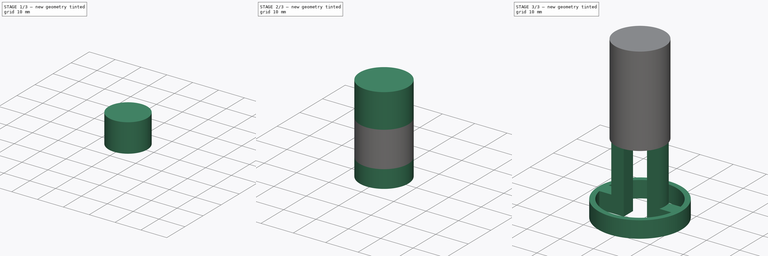
[diagram: build sequence overview — one tinted view per stage of 3, left to right]
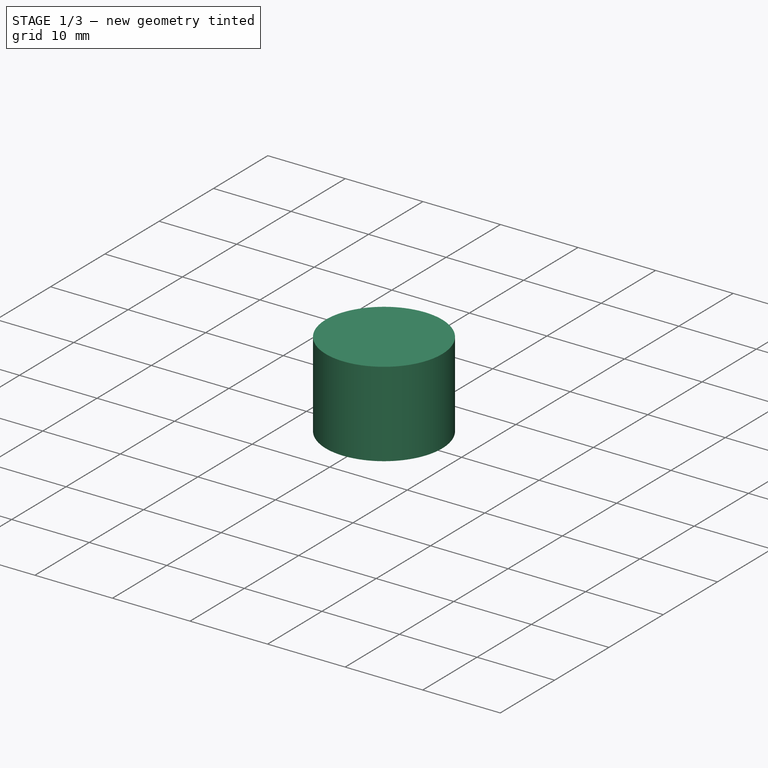
[diagram: stage 1 of 3 — iso view after this stage's code; geometry added in this stage tinted green]
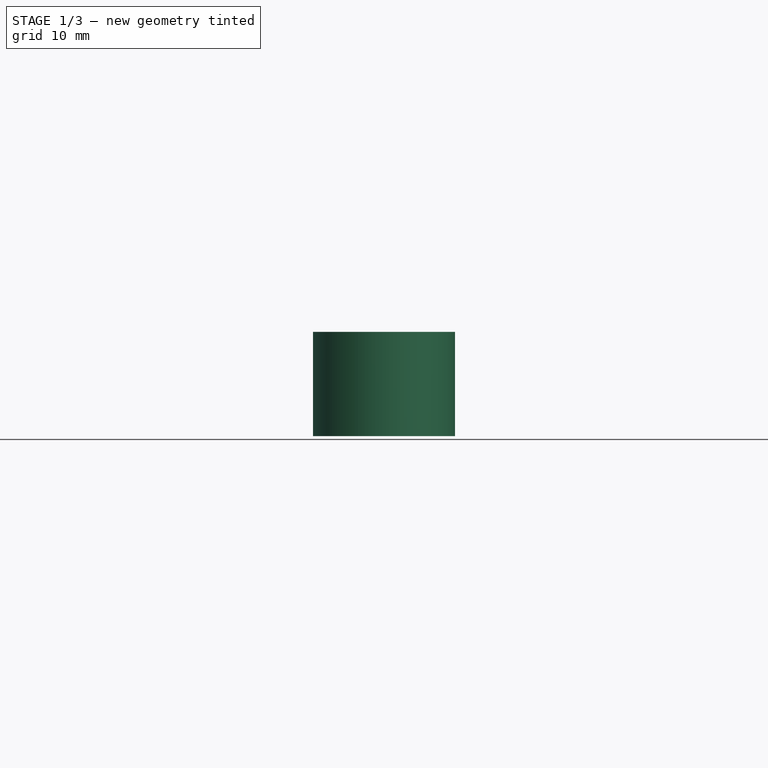
[diagram: stage 1 of 3 — front view after this stage's code; geometry added in this stage tinted green]
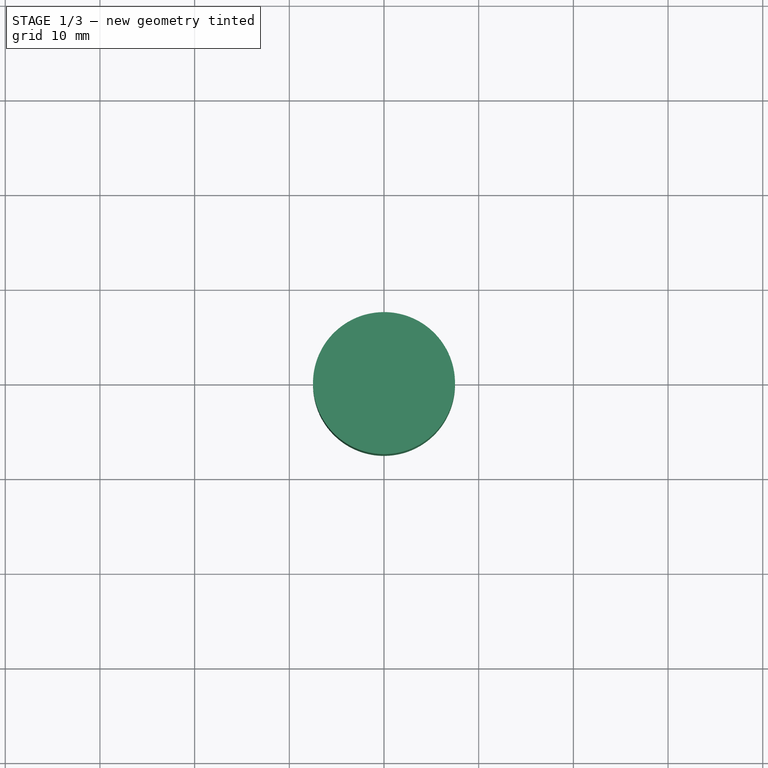
[diagram: stage 1 of 3 — top view after this stage's code; geometry added in this stage tinted green]
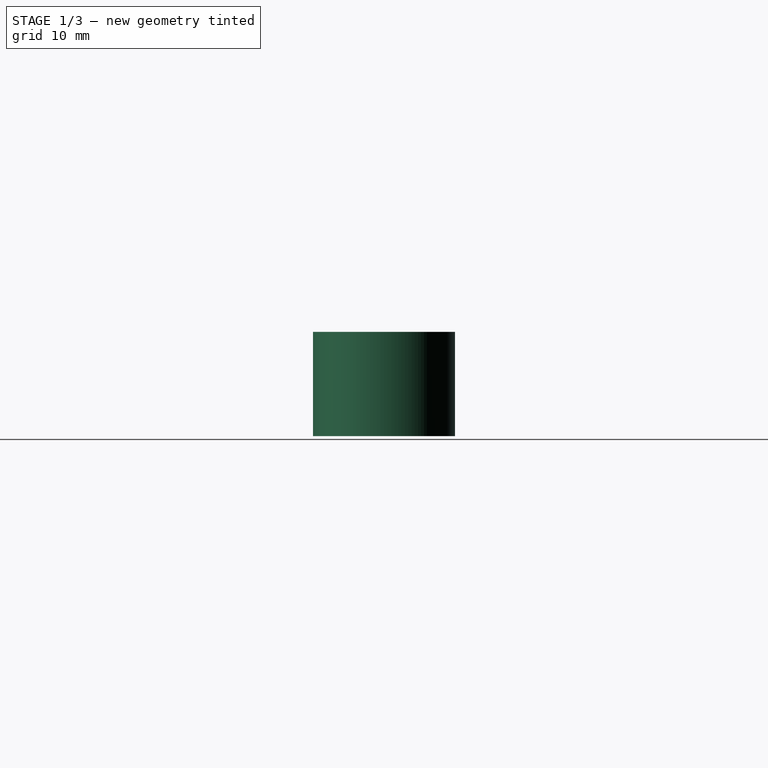
[diagram: stage 1 of 3 — right view after this stage's code; geometry added in this stage tinted green]
FCSTD DOCUMENT  (FreeCAD 0.19R24276 (Git))
Label: SC_ring
License: All rights reserved
LicenseURL: http://en.wikipedia.org/wiki/All_rights_reserved
objects: Sketcher::SketchObject×8, PartDesign::Pad×7, PartDesign::Body×1
note: 23 computed .brp shape members not serialized (recipe doc carries the construction recipe); baked Part::Feature solids carry a one-line shape summary decoded from their .brp

FEATURE [Sketcher::SketchObject] Sketch
  FullyConstrained = true
  MapMode = 5
  Support = -> [XY_Plane]
  sketch-geometry (1):
    g0: Circle CenterX=0 CenterY=0 CenterZ=0 NormalX=0 NormalY=0 NormalZ=1 AngleXU=0 Radius=7.5
  constraints (2):
    c: Coincident(g0,g-1)
    c: Diameter(g0) = 15
FEATURE [PartDesign::Pad] Pad
  Direction = (1,1,1)
  Length = 9
  Length2 = 100
  Profile = -> Sketch
  Type = 0
FEATURE [Sketcher::SketchObject] Sketch001
  FullyConstrained = true
  MapMode = 5
  Placement = pos=(0,0,9) rot=(0,0,1;0rad)
  Support = -> [Pad]
  sketch-geometry (1):
    g0: Circle CenterX=0 CenterY=0 CenterZ=0 NormalX=0 NormalY=0 NormalZ=1 AngleXU=0 Radius=7.5
  constraints (2):
    c: Coincident(g0,g-1)
    c: Diameter(g0) = 15
FEATURE [PartDesign::Pad] Pad001
  BaseFeature = -> Pad
  Direction = (1,1,1)
  Length = 2
  Length2 = 100
  Profile = -> Sketch001
  Type = 0
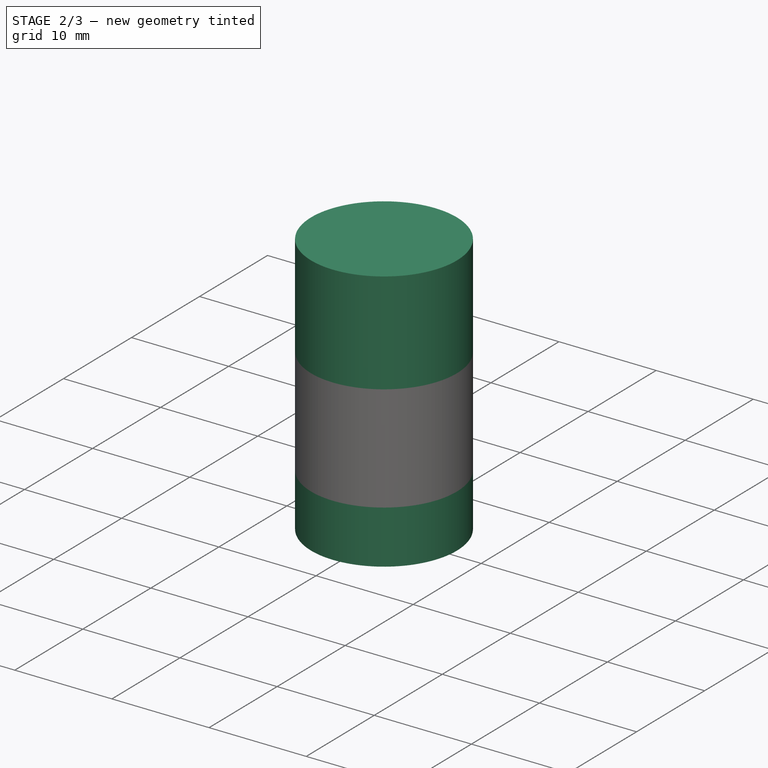
[diagram: stage 2 of 3 — iso view after this stage's code; geometry added in this stage tinted green]
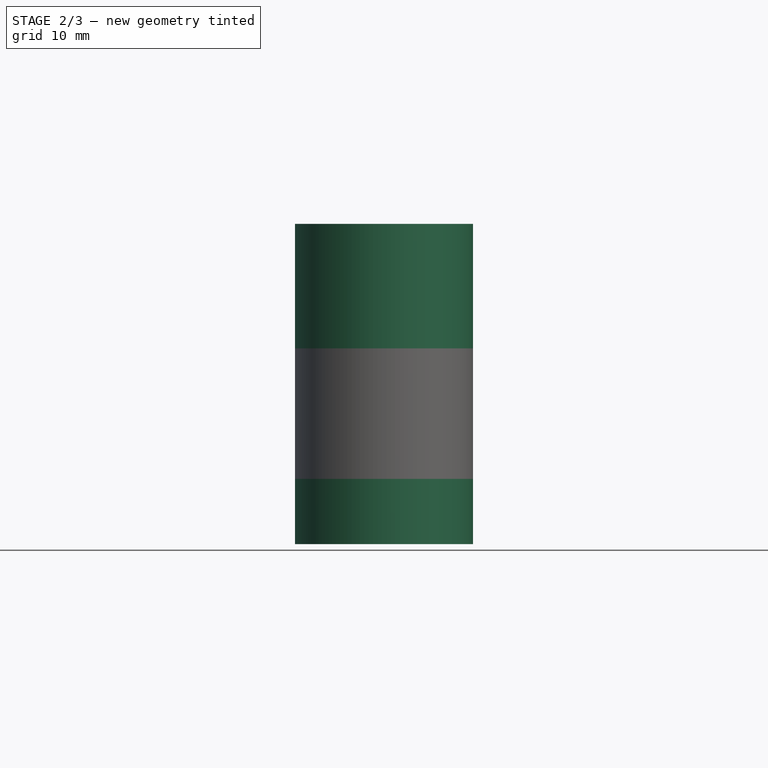
[diagram: stage 2 of 3 — front view after this stage's code; geometry added in this stage tinted green]
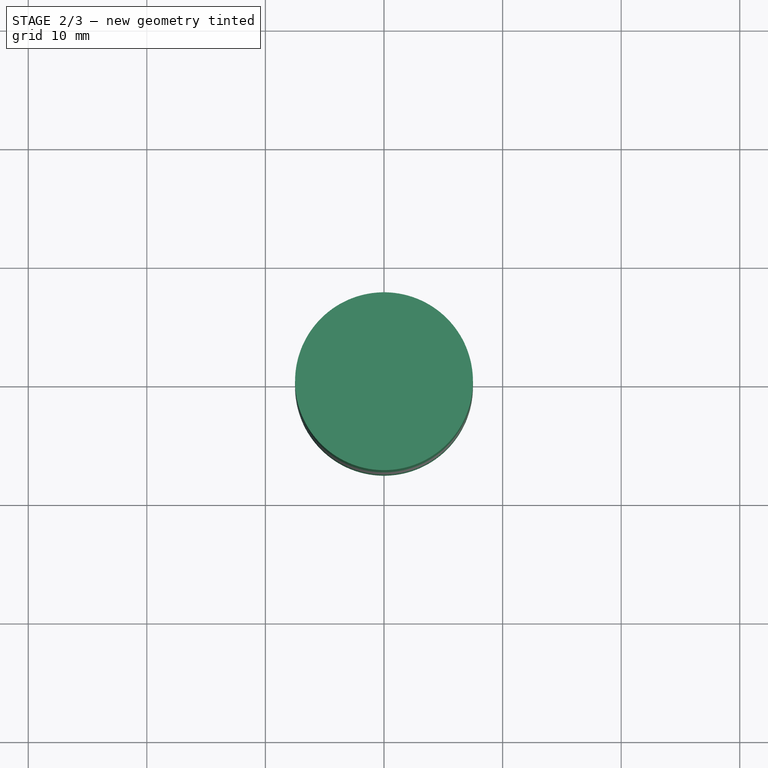
[diagram: stage 2 of 3 — top view after this stage's code; geometry added in this stage tinted green]
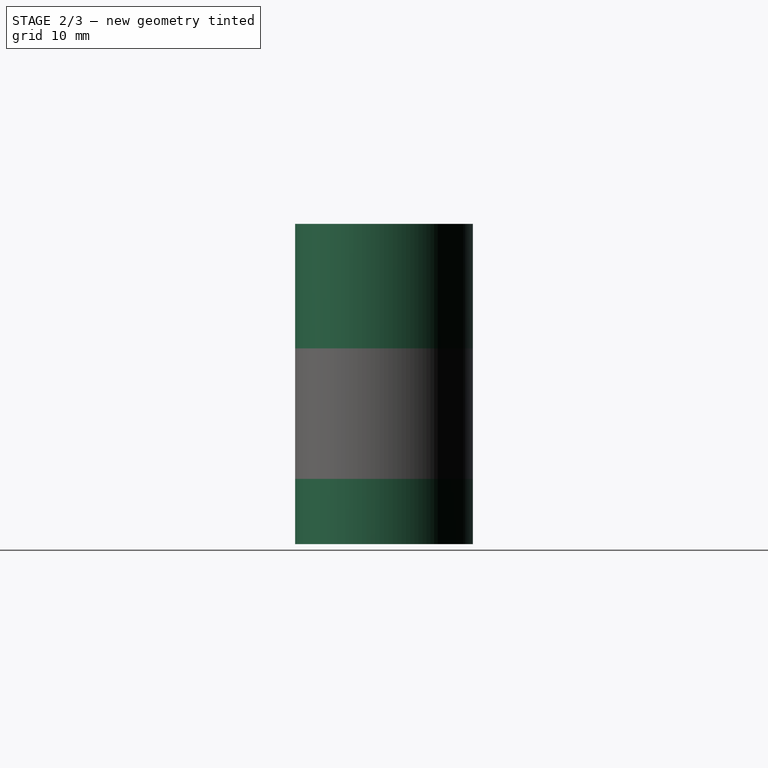
[diagram: stage 2 of 3 — right view after this stage's code; geometry added in this stage tinted green]
FEATURE [Sketcher::SketchObject] Sketch002
  FullyConstrained = true
  MapMode = 5
  Placement = pos=(0,0,11) rot=(0,0,1;0rad)
  Support = -> [Pad001]
  sketch-geometry (1):
    g0: Circle CenterX=0 CenterY=0 CenterZ=0 NormalX=0 NormalY=0 NormalZ=1 AngleXU=0 Radius=7.5
  constraints (2):
    c: Coincident(g0,g-1)
    c: Diameter(g0) = 15
FEATURE [PartDesign::Pad] Pad002
  BaseFeature = -> Pad001
  Direction = (1,1,1)
  Length = 9
  Length2 = 100
  Profile = -> Sketch002
  Type = 0
FEATURE [Sketcher::SketchObject] Sketch003
  FullyConstrained = true
  MapMode = 5
  Placement = pos=(0,0,20) rot=(0,0,1;0rad)
  Support = -> [Pad002]
  sketch-geometry (1):
    g0: Circle CenterX=0 CenterY=0 CenterZ=0 NormalX=0 NormalY=0 NormalZ=1 AngleXU=0 Radius=7.5
  constraints (2):
    c: Coincident(g0,g-1)
    c: Diameter(g0) = 15
FEATURE [PartDesign::Pad] Pad003
  BaseFeature = -> Pad002
  Direction = (1,1,1)
  Length = 1.5
  Length2 = 100
  Profile = -> Sketch003
  Type = 0
FEATURE [Sketcher::SketchObject] Sketch004
  FullyConstrained = true
  MapMode = 5
  Placement = pos=(0,0,0) rot=(1,0,0;3.14159rad)
  Support = -> [Pad003]
  sketch-geometry (1):
    g0: Circle CenterX=0 CenterY=0 CenterZ=0 NormalX=0 NormalY=0 NormalZ=1 AngleXU=0 Radius=7.5
  constraints (2):
    c: Coincident(g0,g-1)
    c: Diameter(g0) = 15
FEATURE [PartDesign::Pad] Pad004
  BaseFeature = -> Pad003
  Direction = (1,1,1)
  Length = 5.5
  Length2 = 100
  Profile = -> Sketch004
  Type = 0
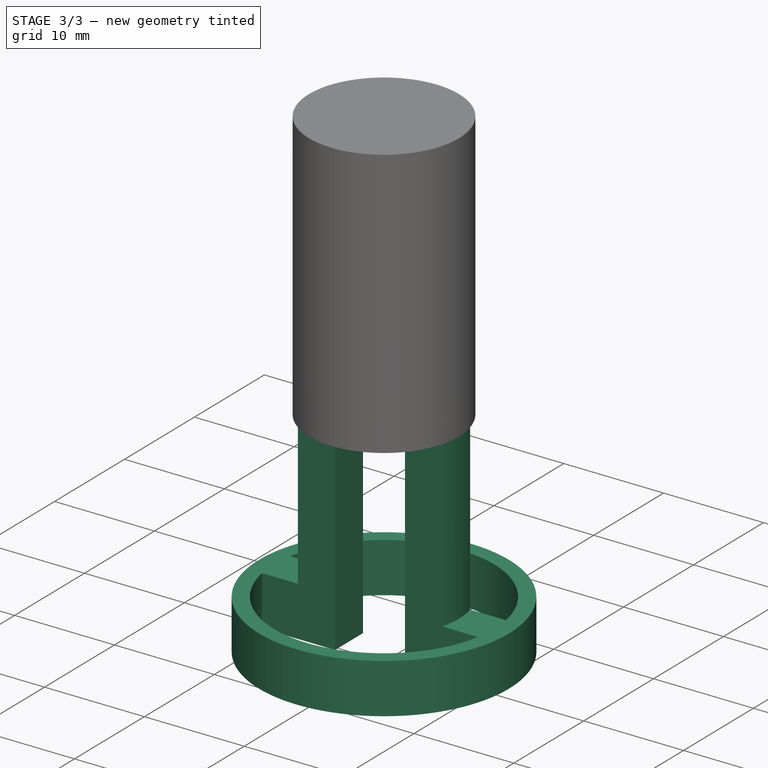
[diagram: stage 3 of 3 — iso view after this stage's code; geometry added in this stage tinted green]
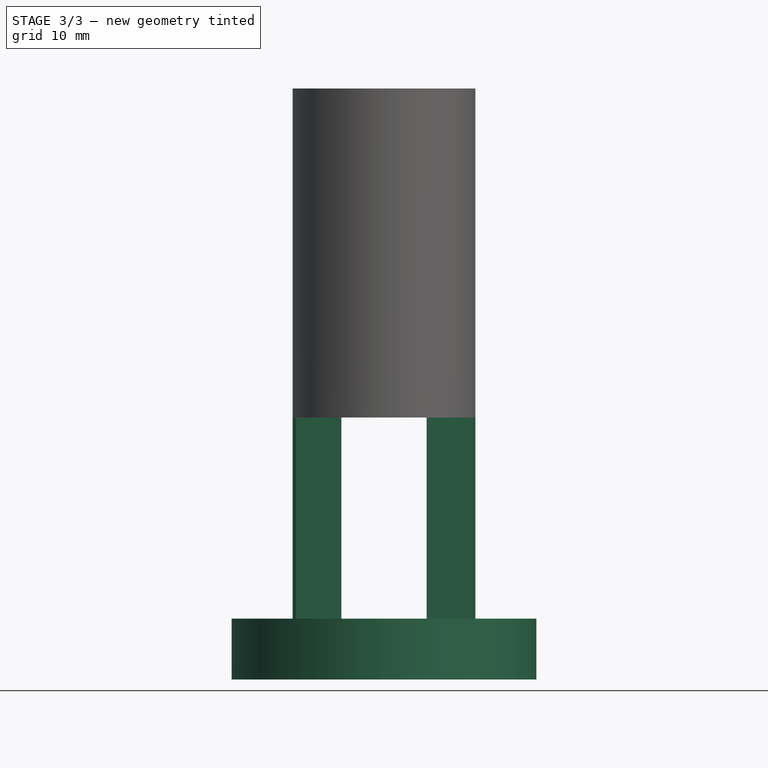
[diagram: stage 3 of 3 — front view after this stage's code; geometry added in this stage tinted green]
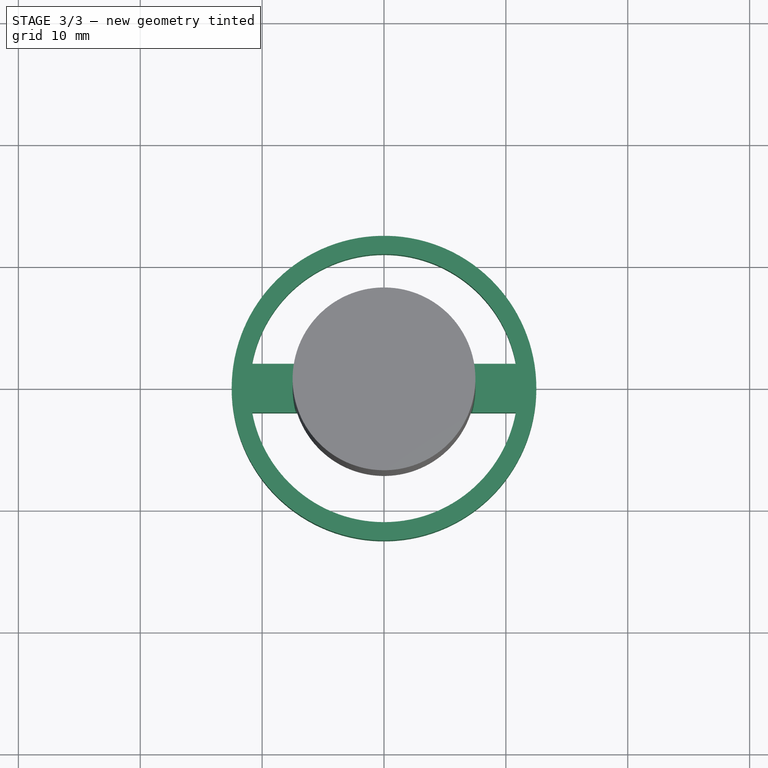
[diagram: stage 3 of 3 — top view after this stage's code; geometry added in this stage tinted green]
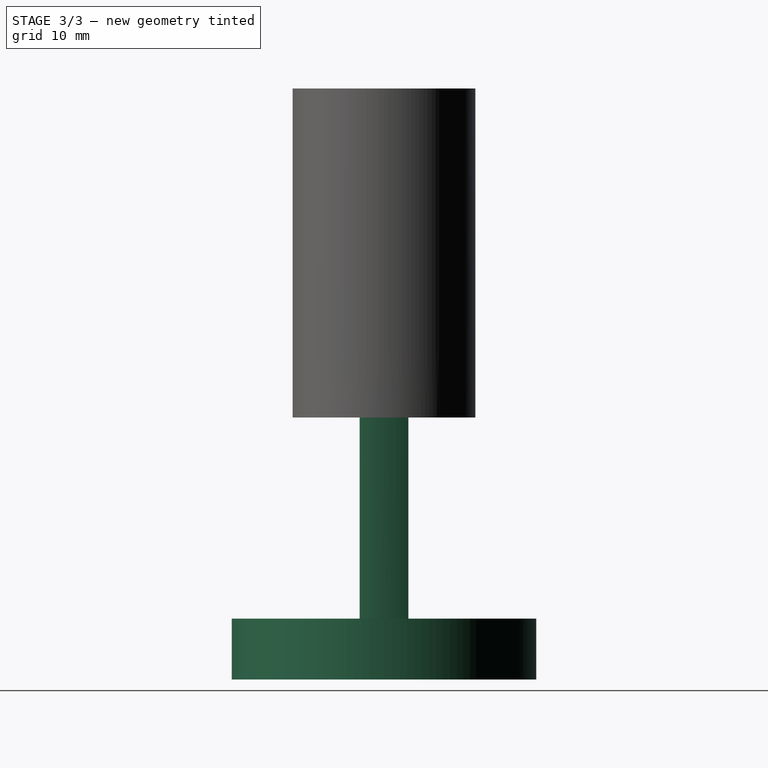
[diagram: stage 3 of 3 — right view after this stage's code; geometry added in this stage tinted green]
FEATURE [Sketcher::SketchObject] Sketch005
  FullyConstrained = false
  MapMode = 5
  Placement = pos=(0,0,-5.5) rot=(1,0,0;3.14159rad)
  Support = -> [Pad004]
  sketch-geometry (11):
    g0: LineSegment StartX=3.5 StartY=2 StartZ=0 EndX=3.5 EndY=-2 EndZ=0
    g1: LineSegment StartX=3.5 StartY=-2 StartZ=0 EndX=7.22842 EndY=-2 EndZ=0
    g2: LineSegment StartX=3.5 StartY=2 StartZ=0 EndX=7.22842 EndY=2 EndZ=0
    g3: LineSegment StartX=0 StartY=0 StartZ=0 EndX=3.5 EndY=0 EndZ=0
    g4: ArcOfCircle CenterX=0 CenterY=0 CenterZ=0 NormalX=0 NormalY=0 NormalZ=1 AngleXU=0 Radius=7.5 StartAngle=6.01325 EndAngle=6.55312
    g5: LineSegment StartX=0 StartY=0 StartZ=0 EndX=0 EndY=5.30132 EndZ=0
    g6: LineSegment StartX=0 StartY=0 StartZ=0 EndX=7.5 EndY=0 EndZ=0
    g7: LineSegment StartX=-3.5 StartY=2 StartZ=0 EndX=-3.5 EndY=-2 EndZ=0
    g8: LineSegment StartX=-3.5 StartY=-2 StartZ=0 EndX=-7.22842 EndY=-2 EndZ=0
    g9: LineSegment StartX=-3.5 StartY=2 StartZ=0 EndX=-7.22842 EndY=2 EndZ=0
    g10: ArcOfCircle CenterX=0 CenterY=0 CenterZ=0 NormalX=0 NormalY=0 NormalZ=1 AngleXU=0 Radius=7.5 StartAngle=2.87166 EndAngle=3.41153
  constraints (24):
    c: Vertical(g0)
    c: Coincident(g1,g0)
    c: Horizontal(g1)
    c: Coincident(g2,g0)
    c: Horizontal(g2)
    c: Coincident(g3,g-1)
    c: PointOnObject(g3,g-1)
    c: Symmetric(g0,g0,g3)
    c: Coincident(g4,g-1)
    c: Diameter(g4) = 15
    c: Coincident(g5,g-1)
    c: PointOnObject(g5,g-2)
    c: Coincident(g4,g1)
    c: Coincident(g4,g2)
    c: DistanceY(g0,g0) = 4
    c: Coincident(g6,g4)
    c: PointOnObject(g6,g4)
    c: Horizontal(g6)
    c: DistanceX(g0,g6) = 4
    c: Coincident(g8,g7)
    c: Coincident(g9,g7)
    c: Diameter(g10) = 15
    c: Coincident(g10,g8)
    c: Coincident(g10,g9)
FEATURE [PartDesign::Pad] Pad005
  BaseFeature = -> Pad004
  Direction = (1,1,1)
  Length = 21.5
  Length2 = 100
  Profile = -> Sketch005
  Type = 0
FEATURE [Sketcher::SketchObject] Sketch006
  FullyConstrained = false
  MapMode = 5
  Placement = pos=(0,0,-27) rot=(1,0,0;3.14159rad)
  Support = -> [Pad005]
  sketch-geometry (13):
    g0: ArcOfCircle CenterX=0 CenterY=0 CenterZ=0 NormalX=0 NormalY=0 NormalZ=1 AngleXU=0 Radius=11 StartAngle=0.182835 EndAngle=2.95876
    g1: Circle CenterX=0 CenterY=0 CenterZ=0 NormalX=0 NormalY=0 NormalZ=1 AngleXU=0 Radius=12.5
    g2: LineSegment StartX=3.5 StartY=2 StartZ=0 EndX=10.8167 EndY=2 EndZ=0
    g3: LineSegment StartX=10.8167 StartY=-2 StartZ=0 EndX=3.5 EndY=-2 EndZ=0
    g4: LineSegment StartX=3.5 StartY=-2 StartZ=0 EndX=3.5 EndY=2 EndZ=0
    g5: Circle CenterX=0 CenterY=0 CenterZ=0 NormalX=0 NormalY=0 NormalZ=1 AngleXU=0 Radius=7.5
    g6: LineSegment StartX=0 StartY=0 StartZ=0 EndX=7.5 EndY=0 EndZ=0
    g7: LineSegment StartX=0 StartY=0 StartZ=0 EndX=3.5 EndY=0 EndZ=0
    g8: LineSegment StartX=0 StartY=0 StartZ=0 EndX=0 EndY=5.84067 EndZ=0
    g9: LineSegment StartX=-3.5 StartY=2 StartZ=0 EndX=-10.8167 EndY=2 EndZ=0
    g10: LineSegment StartX=-10.8167 StartY=-2 StartZ=0 EndX=-3.5 EndY=-2 EndZ=0
    g11: LineSegment StartX=-3.5 StartY=-2 StartZ=0 EndX=-3.5 EndY=2 EndZ=0
    g12: ArcOfCircle CenterX=0 CenterY=0 CenterZ=0 NormalX=0 NormalY=0 NormalZ=1 AngleXU=0 Radius=11 StartAngle=3.32443 EndAngle=6.10035
  constraints (28):
    c: Coincident(g1,g0)
    c: Diameter(g1) = 25
    c: Diameter(g0) = 22
    c: Coincident(g3,g4)
    c: Coincident(g4,g2)
    c: Horizontal(g2)
    c: Horizontal(g3)
    c: Vertical(g4)
    c: Coincident(g5,g0)
    c: Diameter(g5) = 15
    c: Horizontal(g6)
    c: PointOnObject(g6,g5)
    c: DistanceX(g3,g6) = 4
    c: Coincident(g7,g0)
    c: Horizontal(g7)
    c: Symmetric(g2,g3,g7)
    c: Coincident(g-1,g0)
    c: DistanceY(g3,g2) = 4
    c: Coincident(g8,g0)
    c: PointOnObject(g8,g-2)
    c: Coincident(g10,g11)
    c: Coincident(g11,g9)
    c: Coincident(g0,g2)
    c: Coincident(g12,g3)
    c: Equal(g0,g12)
    c: Coincident(g0,g12)
    c: Coincident(g9,g0)
    c: Coincident(g10,g12)
FEATURE [PartDesign::Pad] Pad006
  BaseFeature = -> Pad005
  Direction = (1,1,1)
  Length = 5
  Length2 = 100
  Profile = -> Sketch006
  Reversed = true
  Type = 0
FEATURE [Sketcher::SketchObject] Sketch007
  FullyConstrained = false
  MapMode = 5
  Placement = pos=(0,0,-27) rot=(1,0,0;3.14159rad)
  Support = -> [Pad006]
  sketch-geometry (19):
    g0: Circle CenterX=0 CenterY=25 CenterZ=0 NormalX=0 NormalY=0 NormalZ=1 AngleXU=0 Radius=2.5
    g1: Circle CenterX=0 CenterY=-15 CenterZ=0 NormalX=0 NormalY=0 NormalZ=1 AngleXU=0 Radius=2.5
    g2: Circle CenterX=10 CenterY=45 CenterZ=0 NormalX=0 NormalY=0 NormalZ=1 AngleXU=0 Radius=2.5
    g3: Circle CenterX=-10 CenterY=45 CenterZ=0 NormalX=0 NormalY=0 NormalZ=1 AngleXU=0 Radius=2.5
    g4: Circle CenterX=10 CenterY=-35 CenterZ=0 NormalX=0 NormalY=0 NormalZ=1 AngleXU=0 Radius=2.5
    g5: Circle CenterX=-10 CenterY=-35 CenterZ=0 NormalX=0 NormalY=0 NormalZ=1 AngleXU=0 Radius=2.5
    g6: LineSegment StartX=0 StartY=25 StartZ=0 EndX=0 EndY=45 EndZ=0
    g7: LineSegment StartX=0 StartY=0 StartZ=0 EndX=0 EndY=-35 EndZ=0
    g8: LineSegment StartX=-10 StartY=5 StartZ=0 EndX=10 EndY=5 EndZ=0
    g9: Circle CenterX=-10 CenterY=5 CenterZ=0 NormalX=0 NormalY=0 NormalZ=1 AngleXU=0 Radius=2.5
    g10: Circle CenterX=10 CenterY=5 CenterZ=0 NormalX=0 NormalY=0 NormalZ=1 AngleXU=0 Radius=2.5
    g11: LineSegment StartX=20 StartY=-45 StartZ=0 EndX=-20 EndY=-45 EndZ=0
    g12: LineSegment StartX=-20 StartY=-45 StartZ=0 EndX=-20 EndY=55 EndZ=0
    g13: LineSegment StartX=-20 StartY=55 StartZ=0 EndX=20 EndY=55 EndZ=0
    g14: LineSegment StartX=20 StartY=55 StartZ=0 EndX=20 EndY=-45 EndZ=0
    g15: LineSegment StartX=-16.9888 StartY=31.8157 StartZ=0 EndX=17.8065 EndY=31.8157 EndZ=0
    g16: LineSegment StartX=17.8065 StartY=31.8157 StartZ=0 EndX=17.8065 EndY=-23.3985 EndZ=0
    g17: LineSegment StartX=17.8065 StartY=-23.3985 StartZ=0 EndX=-16.9888 EndY=-23.3985 EndZ=0
    g18: LineSegment StartX=-16.9888 StartY=-23.3985 StartZ=0 EndX=-16.9888 EndY=31.8157 EndZ=0
  constraints (49):
    c: PointOnObject(g0,g-2)
    c: PointOnObject(g1,g-2)
    c: Diameter(g1) = 5
    c: Equal(g1,g0)
    c: DistanceY(g1,g-1) = 15
    c: DistanceY(g-1,g0) = 25
    c: Horizontal(g3,g2)
    c: DistanceY(g0,g2) = 20
    c: Horizontal(g5,g4)
    c: Equal(g5,g4)
    c: Equal(g4,g1)
    c: Equal(g1,g3)
    c: Equal(g3,g2)
    c: Coincident(g6,g0)
    c: Vertical(g6)
    c: Symmetric(g3,g2,g6)
    c: Coincident(g7,g-1)
    c: PointOnObject(g7,g-2)
    c: Symmetric(g5,g4,g7)
    c: DistanceY(g5,g1) = 20
    c: Horizontal(g8)
    c: Symmetric(g5,g3,g8)
    c: Vertical(g5,g3)
    c: DistanceX(g3,g2) = 20
    c: Coincident(g9,g8)
    c: Coincident(g10,g8)
    c: Equal(g9,g10)
    c: Equal(g10,g0)
    c: DistanceX(g8,g8) = 20
    c: Coincident(g11,g12)
    c: Coincident(g12,g13)
    c: Coincident(g13,g14)
    c: Coincident(g14,g11)
    c: Horizontal(g11)
    c: Horizontal(g13)
    c: Vertical(g12)
    c: Vertical(g14)
    c: DistanceY(g11,g4) = 10
    c: DistanceX(g4,g11) = 10
    c: DistanceX(g11,g11) = 40
    c: DistanceY(g14,g14) = 100
    c: Coincident(g15,g16)
    c: Coincident(g16,g17)
    c: Coincident(g17,g18)
    c: Coincident(g18,g15)
    c: Horizontal(g15)
    c: Horizontal(g17)
    c: Vertical(g16)
    c: Vertical(g18)
FEATURE [PartDesign::Body] Body
  Group = -> [Sketch,Pad,Sketch001,Pad001,Sketch002,Pad002,Sketch003,Pad003,Sketch004,Pad004,Sketch005,Pad005,Sketch006,Pad006,Sketch007]
  Origin = -> Origin
  Tip = -> Pad006
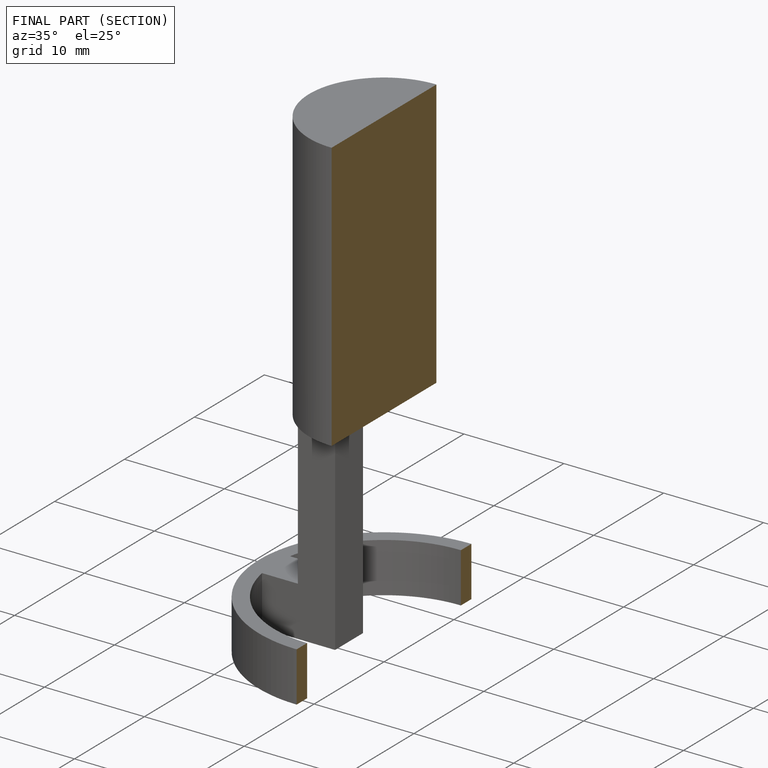
[diagram: finished part — half-section view (interior)]
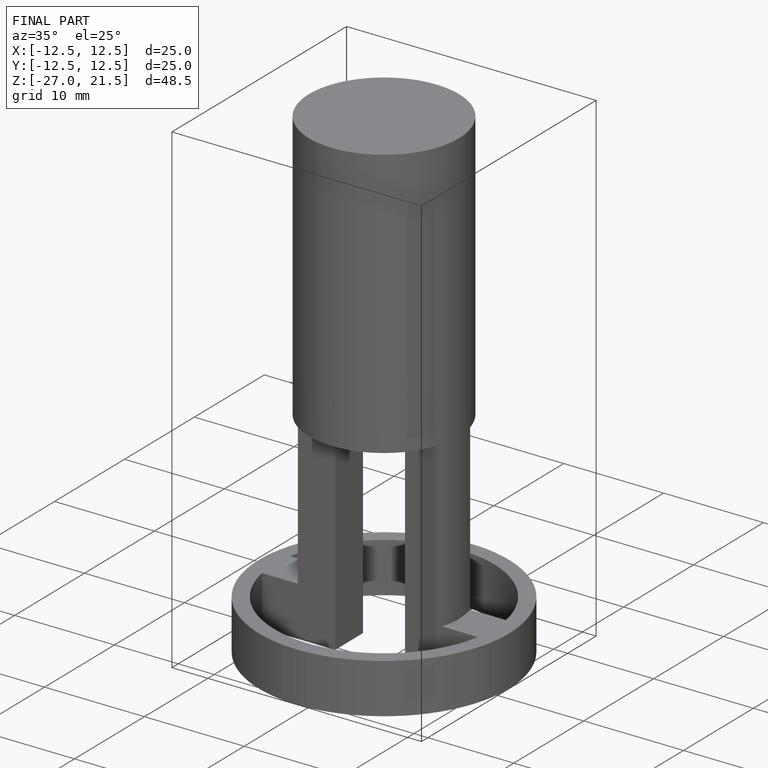
[diagram: finished part — iso view with bounding-box wireframe]
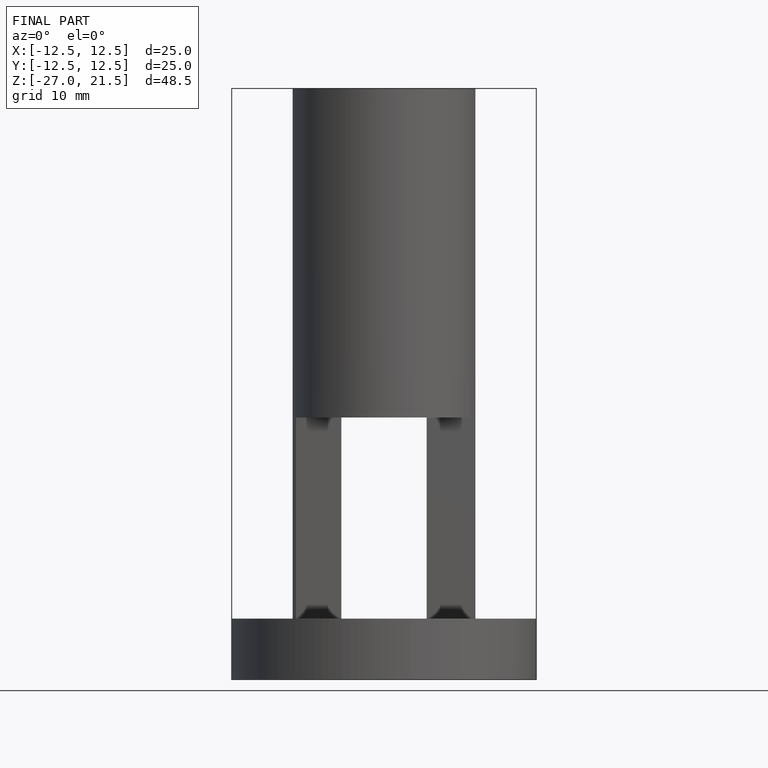
[diagram: finished part — front view with bounding-box wireframe]
